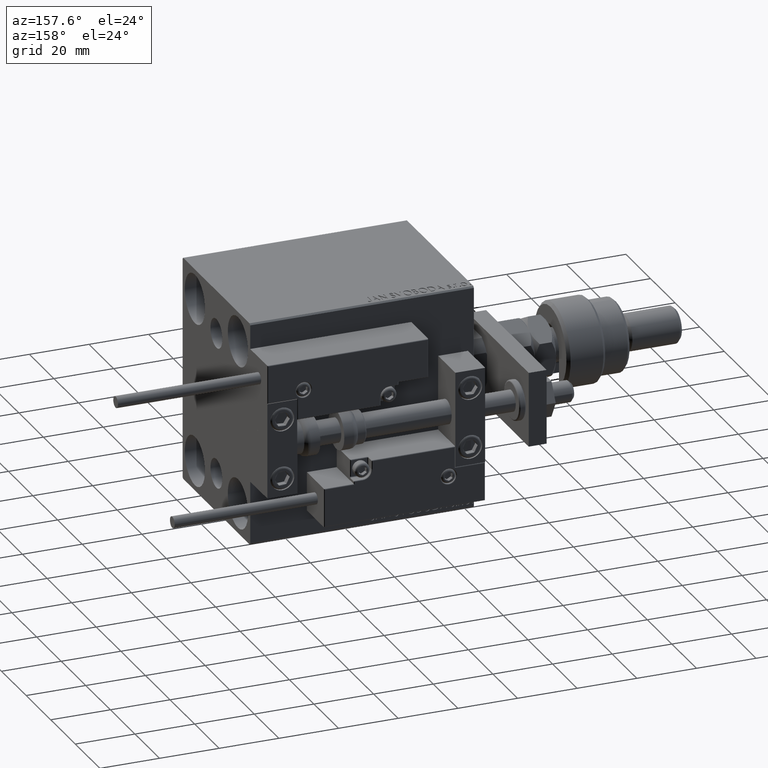
[diagram: clean part render]
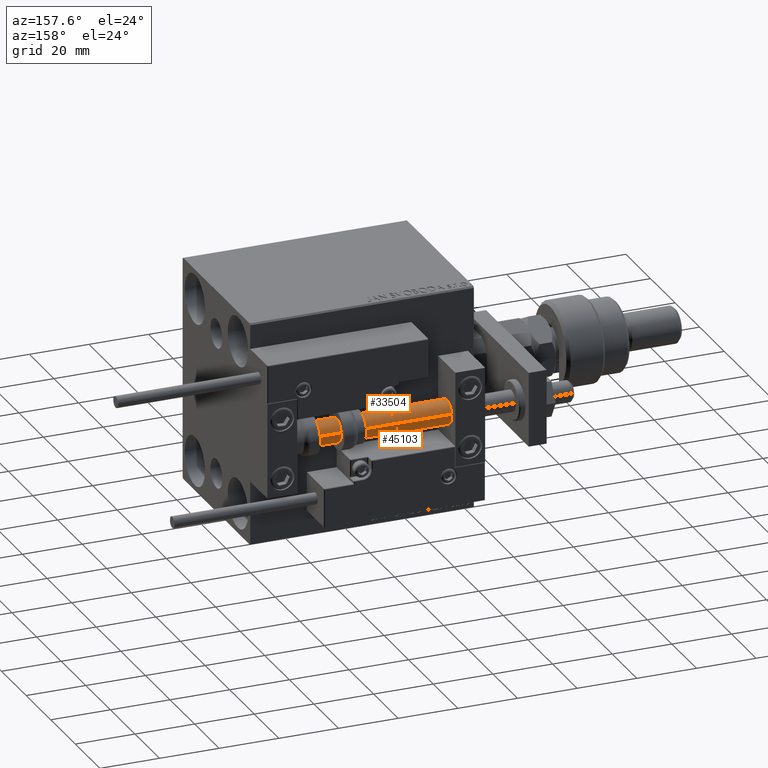
[diagram: same view with one multi-face feature highlighted, each face labeled with its STEP entity id]
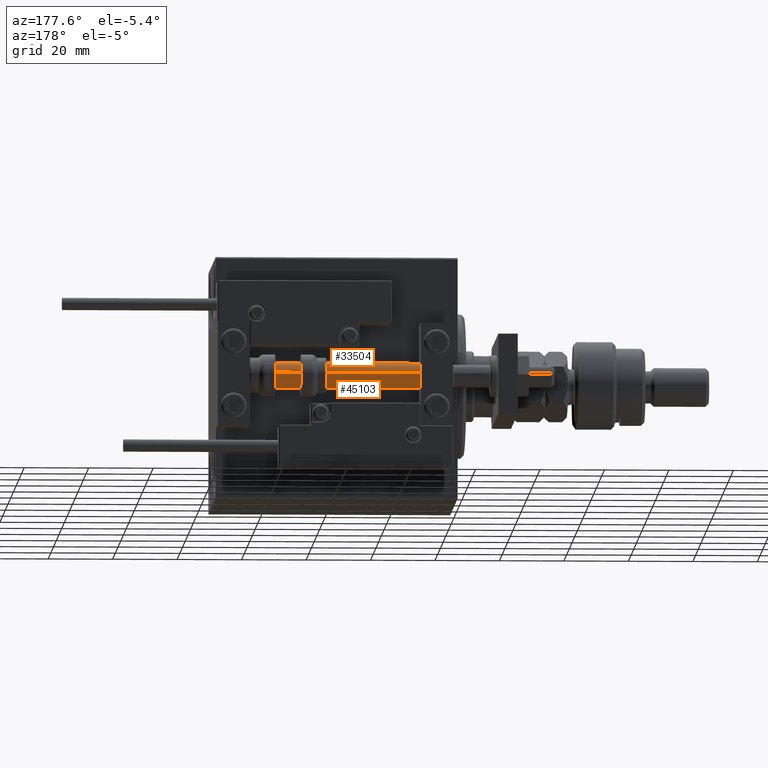
[diagram: same view with one multi-face feature highlighted, each face labeled with its STEP entity id]
A machine part, auxiliary view. The highlighted faces form ONE feature: a constant-radius fillet chain: 2 tangent blend faces with common blend radius 4 mm. The faces share edges in the B-rep.
A second angle (auxiliary view) of the same feature is appended — it is thin or edge-on in the first view.
Their STEP definitions:
[1] entity #45103 (Cylinder):
#1272 = EDGE_CURVE ( 'NONE', #27632, #28637, #36626, .T. ) ;
#2605 = CYLINDRICAL_SURFACE ( 'NONE', #26785, 4.000000000000000000 ) ;
#5455 = CARTESIAN_POINT ( 'NONE',  ( 0.000000000000000000, 0.000000000000000000, 75.00000000000000000 ) ) ;
#10537 = LINE ( 'NONE', #14536, #13547 ) ;
#11132 = DIRECTION ( 'NONE',  ( -1.000000000000000000, 0.000000000000000000, 0.000000000000000000 ) ) ;
#11251 = ORIENTED_EDGE ( 'NONE', *, *, #22743, .F. ) ;
#13547 = VECTOR ( 'NONE', #47339, 1000.000000000000000 ) ;
#14536 = CARTESIAN_POINT ( 'NONE',  ( 4.000000000000000000, 4.898587196589412829E-16, 75.00000000000000000 ) ) ;
#15035 = EDGE_LOOP ( 'NONE', ( #11251, #23246, #36253, #32818 ) ) ;
#15351 = CARTESIAN_POINT ( 'NONE',  ( -4.000000000000000000, 0.000000000000000000, 2.000000000000029310 ) ) ;
#16242 = CARTESIAN_POINT ( 'NONE',  ( -4.000000000000000000, 0.000000000000000000, 75.00000000000000000 ) ) ;
#19290 = AXIS2_PLACEMENT_3D ( 'NONE', #21303, #49830, #29831 ) ;
#19578 = CARTESIAN_POINT ( 'NONE',  ( -4.000000000000000000, 0.000000000000000000, 75.00000000000000000 ) ) ;
#21303 = CARTESIAN_POINT ( 'NONE',  ( 0.000000000000000000, 0.000000000000000000, 2.000000000000029310 ) ) ;
#21723 = DIRECTION ( 'NONE',  ( 1.000000000000000000, 0.000000000000000000, 0.000000000000000000 ) ) ;
#22743 = EDGE_CURVE ( 'NONE', #44022, #32883, #10537, .T. ) ;
#23017 = CARTESIAN_POINT ( 'NONE',  ( 4.000000000000000000, 4.898587196589412829E-16, 2.000000000000029310 ) ) ;
#23246 = ORIENTED_EDGE ( 'NONE', *, *, #37958, .F. ) ;
#26785 = AXIS2_PLACEMENT_3D ( 'NONE', #47401, #35399, #11132 ) ;
#26797 = CIRCLE ( 'NONE', #43802, 4.000000000000000000 ) ;
#27632 = VERTEX_POINT ( 'NONE', #16242 ) ;
#28637 = VERTEX_POINT ( 'NONE', #15351 ) ;
#29831 = DIRECTION ( 'NONE',  ( 1.000000000000000000, 0.000000000000000000, 0.000000000000000000 ) ) ;
#32818 = ORIENTED_EDGE ( 'NONE', *, *, #48614, .T. ) ;
#32883 = VERTEX_POINT ( 'NONE', #23017 ) ;
#34576 = VECTOR ( 'NONE', #35571, 1000.000000000000000 ) ;
#35399 = DIRECTION ( 'NONE',  ( -0.000000000000000000, -0.000000000000000000, -1.000000000000000000 ) ) ;
#35571 = DIRECTION ( 'NONE',  ( -0.000000000000000000, -0.000000000000000000, -1.000000000000000000 ) ) ;
#36253 = ORIENTED_EDGE ( 'NONE', *, *, #1272, .T. ) ;
#36626 = LINE ( 'NONE', #19578, #34576 ) ;
#37958 = EDGE_CURVE ( 'NONE', #27632, #44022, #26797, .T. ) ;
#38349 = CARTESIAN_POINT ( 'NONE',  ( 4.000000000000000000, 4.898587196589412829E-16, 75.00000000000000000 ) ) ;
#43802 = AXIS2_PLACEMENT_3D ( 'NONE', #5455, #46253, #21723 ) ;
#44022 = VERTEX_POINT ( 'NONE', #38349 ) ;
#45103 = ADVANCED_FACE ( 'NONE', ( #47134 ), #2605, .T. ) ;
#46253 = DIRECTION ( 'NONE',  ( 0.000000000000000000, 0.000000000000000000, 1.000000000000000000 ) ) ;
#47134 = FACE_OUTER_BOUND ( 'NONE', #15035, .T. ) ;
#47339 = DIRECTION ( 'NONE',  ( -0.000000000000000000, -0.000000000000000000, -1.000000000000000000 ) ) ;
#47401 = CARTESIAN_POINT ( 'NONE',  ( 0.000000000000000000, 0.000000000000000000, 75.00000000000000000 ) ) ;
#48614 = EDGE_CURVE ( 'NONE', #28637, #32883, #50802, .T. ) ;
#49830 = DIRECTION ( 'NONE',  ( -0.000000000000000000, -0.000000000000000000, 1.000000000000000000 ) ) ;
#50802 = CIRCLE ( 'NONE', #19290, 4.000000000000000000 ) ;
[2] entity #33504 (Cylinder):
#1272 = EDGE_CURVE ( 'NONE', #27632, #28637, #36626, .T. ) ;
#1383 = AXIS2_PLACEMENT_3D ( 'NONE', #20710, #17482, #41235 ) ;
#1916 = ORIENTED_EDGE ( 'NONE', *, *, #1272, .F. ) ;
#5176 = CYLINDRICAL_SURFACE ( 'NONE', #46201, 4.000000000000000000 ) ;
#9729 = AXIS2_PLACEMENT_3D ( 'NONE', #36880, #17129, #28872 ) ;
#10537 = LINE ( 'NONE', #14536, #13547 ) ;
#10632 = ORIENTED_EDGE ( 'NONE', *, *, #22743, .T. ) ;
#13547 = VECTOR ( 'NONE', #47339, 1000.000000000000000 ) ;
#14536 = CARTESIAN_POINT ( 'NONE',  ( 4.000000000000000000, 4.898587196589412829E-16, 75.00000000000000000 ) ) ;
#15351 = CARTESIAN_POINT ( 'NONE',  ( -4.000000000000000000, 0.000000000000000000, 2.000000000000029310 ) ) ;
#16242 = CARTESIAN_POINT ( 'NONE',  ( -4.000000000000000000, 0.000000000000000000, 75.00000000000000000 ) ) ;
#17129 = DIRECTION ( 'NONE',  ( 0.000000000000000000, 0.000000000000000000, 1.000000000000000000 ) ) ;
#17482 = DIRECTION ( 'NONE',  ( -0.000000000000000000, -0.000000000000000000, 1.000000000000000000 ) ) ;
#19578 = CARTESIAN_POINT ( 'NONE',  ( -4.000000000000000000, 0.000000000000000000, 75.00000000000000000 ) ) ;
#20396 = CARTESIAN_POINT ( 'NONE',  ( 0.000000000000000000, 0.000000000000000000, 75.00000000000000000 ) ) ;
#20710 = CARTESIAN_POINT ( 'NONE',  ( 0.000000000000000000, 0.000000000000000000, 2.000000000000029310 ) ) ;
#22743 = EDGE_CURVE ( 'NONE', #44022, #32883, #10537, .T. ) ;
#22970 = ORIENTED_EDGE ( 'NONE', *, *, #48937, .T. ) ;
#23017 = CARTESIAN_POINT ( 'NONE',  ( 4.000000000000000000, 4.898587196589412829E-16, 2.000000000000029310 ) ) ;
#24908 = FACE_OUTER_BOUND ( 'NONE', #35043, .T. ) ;
#27632 = VERTEX_POINT ( 'NONE', #16242 ) ;
#28409 = DIRECTION ( 'NONE',  ( -1.000000000000000000, 0.000000000000000000, 0.000000000000000000 ) ) ;
#28637 = VERTEX_POINT ( 'NONE', #15351 ) ;
#28872 = DIRECTION ( 'NONE',  ( 1.000000000000000000, 0.000000000000000000, 0.000000000000000000 ) ) ;
#29887 = ORIENTED_EDGE ( 'NONE', *, *, #37444, .F. ) ;
#32883 = VERTEX_POINT ( 'NONE', #23017 ) ;
#33504 = ADVANCED_FACE ( 'NONE', ( #24908 ), #5176, .T. ) ;
#34576 = VECTOR ( 'NONE', #35571, 1000.000000000000000 ) ;
#35043 = EDGE_LOOP ( 'NONE', ( #29887, #10632, #22970, #1916 ) ) ;
#35571 = DIRECTION ( 'NONE',  ( -0.000000000000000000, -0.000000000000000000, -1.000000000000000000 ) ) ;
#36626 = LINE ( 'NONE', #19578, #34576 ) ;
#36880 = CARTESIAN_POINT ( 'NONE',  ( 0.000000000000000000, 0.000000000000000000, 75.00000000000000000 ) ) ;
#37444 = EDGE_CURVE ( 'NONE', #44022, #27632, #45501, .T. ) ;
#37713 = DIRECTION ( 'NONE',  ( -0.000000000000000000, -0.000000000000000000, -1.000000000000000000 ) ) ;
#38349 = CARTESIAN_POINT ( 'NONE',  ( 4.000000000000000000, 4.898587196589412829E-16, 75.00000000000000000 ) ) ;
#41235 = DIRECTION ( 'NONE',  ( 1.000000000000000000, 0.000000000000000000, 0.000000000000000000 ) ) ;
#44022 = VERTEX_POINT ( 'NONE', #38349 ) ;
#45501 = CIRCLE ( 'NONE', #9729, 4.000000000000000000 ) ;
#46201 = AXIS2_PLACEMENT_3D ( 'NONE', #20396, #37713, #28409 ) ;
#47339 = DIRECTION ( 'NONE',  ( -0.000000000000000000, -0.000000000000000000, -1.000000000000000000 ) ) ;
#47378 = CIRCLE ( 'NONE', #1383, 4.000000000000000000 ) ;
#48937 = EDGE_CURVE ( 'NONE', #32883, #28637, #47378, .T. ) ;